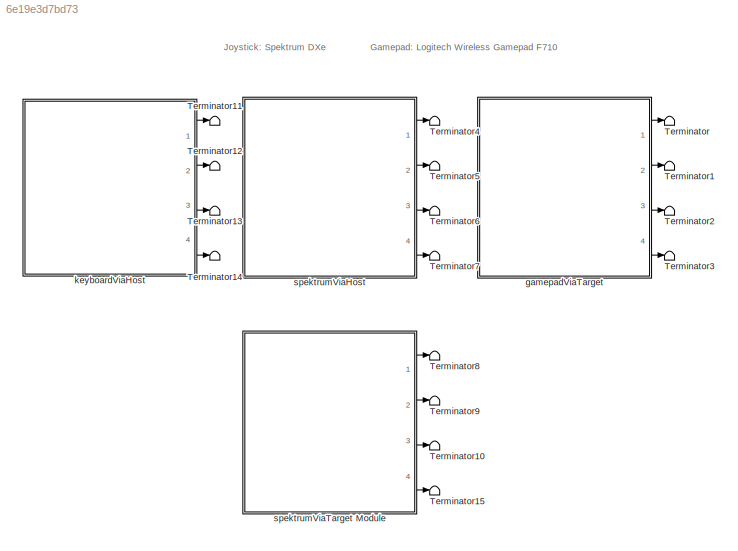
MODEL slx_6e19e3d7bd73
KIND model
CONFIG AbsTol = auto
CONFIG EnableMultiTasking = on
CONFIG FixedStep = 0.002
CONFIG MaxStep = auto
CONFIG MinStep = auto
CONFIG RelTol = 1e-3
CONFIG SampleTimeConstraint = Unconstrained
CONFIG Solver = ode2
CONFIG SolverName = ode2
CONFIG StartTime = 0.0
CONFIG StopTime = inf
BLOCK [Terminator] Terminator
BLOCK [Terminator] Terminator1
BLOCK [Terminator] Terminator10
BLOCK [Terminator] Terminator11
BLOCK [Terminator] Terminator12
BLOCK [Terminator] Terminator13
BLOCK [Terminator] Terminator14
BLOCK [Terminator] Terminator15
BLOCK [Terminator] Terminator2
BLOCK [Terminator] Terminator3
BLOCK [Terminator] Terminator4
BLOCK [Terminator] Terminator5
BLOCK [Terminator] Terminator6
BLOCK [Terminator] Terminator7
BLOCK [Terminator] Terminator8
BLOCK [Terminator] Terminator9
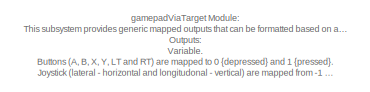
[diagram: gamepadViaTarget - part 1/2, top left region]
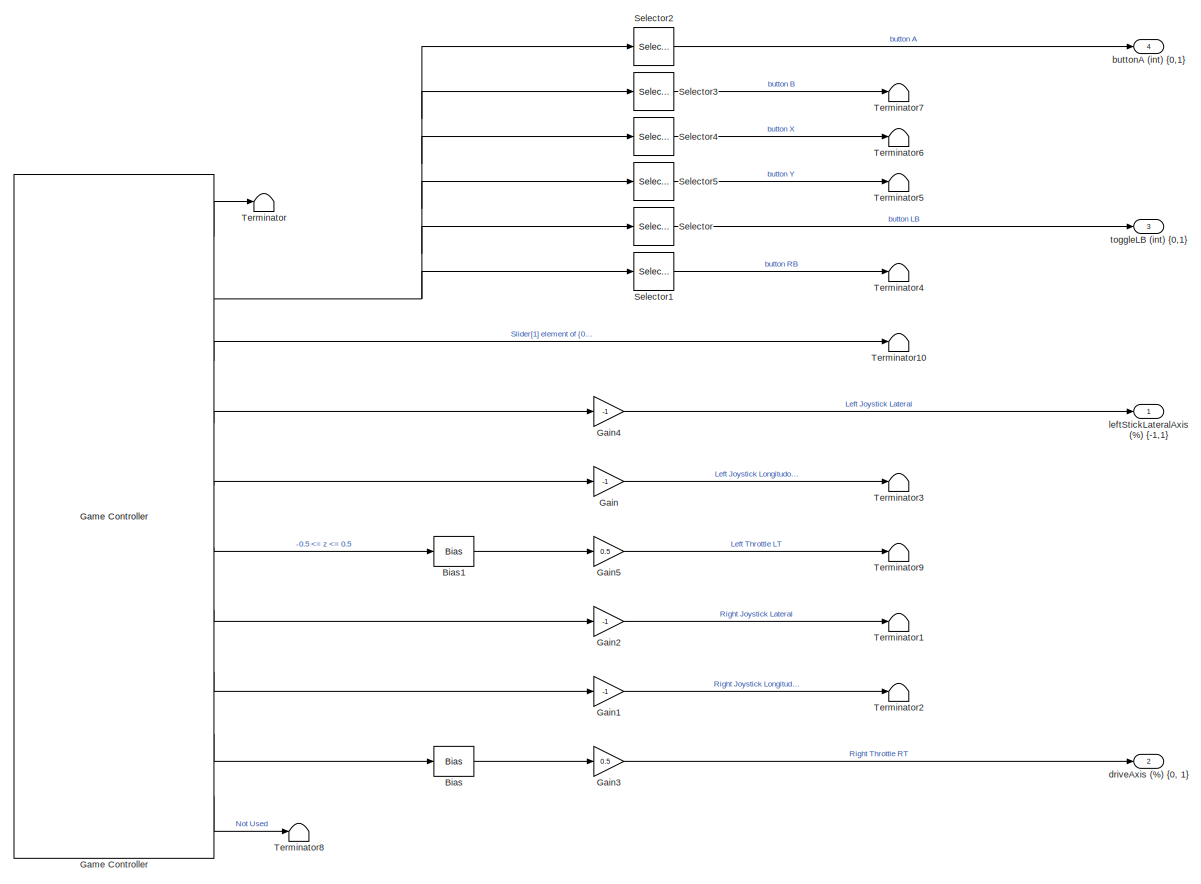
[diagram: gamepadViaTarget - part 2/2, most of the canvas]
BLOCK [SubSystem] gamepadViaTarget
  Ports = [0, 4]
  RequestExecContextInheritance = off
BLOCK [Bias] gamepadViaTarget/Bias
  Bias = 1
  SaturateOnIntegerOverflow = off
BLOCK [Bias] gamepadViaTarget/Bias1
  Bias = 1
  SaturateOnIntegerOverflow = off
BLOCK [Gain] gamepadViaTarget/Gain
  Gain = -1
  OutDataTypeStr = Inherit: Inherit via internal rule
  ParamDataTypeStr = Inherit: Inherit via internal rule
  SaturateOnIntegerOverflow = off
BLOCK [Gain] gamepadViaTarget/Gain1
  Gain = -1
  OutDataTypeStr = Inherit: Inherit via internal rule
  ParamDataTypeStr = Inherit: Inherit via internal rule
  SaturateOnIntegerOverflow = off
BLOCK [Gain] gamepadViaTarget/Gain2
  Gain = -1
  OutDataTypeStr = Inherit: Inherit via internal rule
  ParamDataTypeStr = Inherit: Inherit via internal rule
  SaturateOnIntegerOverflow = off
BLOCK [Gain] gamepadViaTarget/Gain3
  Gain = 0.5
  OutDataTypeStr = Inherit: Inherit via internal rule
  ParamDataTypeStr = Inherit: Inherit via internal rule
  SaturateOnIntegerOverflow = off
BLOCK [Gain] gamepadViaTarget/Gain4
  Gain = -1
  OutDataTypeStr = Inherit: Inherit via internal rule
  ParamDataTypeStr = Inherit: Inherit via internal rule
  SaturateOnIntegerOverflow = off
BLOCK [Gain] gamepadViaTarget/Gain5
  Gain = 0.5
  OutDataTypeStr = Inherit: Inherit via internal rule
  ParamDataTypeStr = Inherit: Inherit via internal rule
  SaturateOnIntegerOverflow = off
BLOCK [Reference] gamepadViaTarget/Game Controller  REF=quarc_library/Devices/Peripherals/Target/Game Controller
  Ports = [0, 10]
  SourceBlock = quarc_library/Devices/Peripherals/Target/Game Controller
  SourceProductName = QUARC Targets
  SourceType = Game Controller
BLOCK [Selector] gamepadViaTarget/Selector
  IndexOptions = Index vector (dialog)
  Indices = [5]
  InputPortWidth = 32
  OutputSizes = 1
  Ports = [1, 1]
BLOCK [Selector] gamepadViaTarget/Selector1
  IndexOptions = Index vector (dialog)
  Indices = [6]
  InputPortWidth = 32
  OutputSizes = 1
  Ports = [1, 1]
BLOCK [Selector] gamepadViaTarget/Selector2
  IndexOptions = Index vector (dialog)
  Indices = [1]
  InputPortWidth = 32
  OutputSizes = 1
  Ports = [1, 1]
BLOCK [Selector] gamepadViaTarget/Selector3
  IndexOptions = Index vector (dialog)
  Indices = [2]
  InputPortWidth = 32
  OutputSizes = 1
  Ports = [1, 1]
BLOCK [Selector] gamepadViaTarget/Selector4
  IndexOptions = Index vector (dialog)
  Indices = [3]
  InputPortWidth = 32
  OutputSizes = 1
  Ports = [1, 1]
BLOCK [Selector] gamepadViaTarget/Selector5
  IndexOptions = Index vector (dialog)
  Indices = [4]
  InputPortWidth = 32
  OutputSizes = 1
  Ports = [1, 1]
BLOCK [Terminator] gamepadViaTarget/Terminator
BLOCK [Terminator] gamepadViaTarget/Terminator1
BLOCK [Terminator] gamepadViaTarget/Terminator10
BLOCK [Terminator] gamepadViaTarget/Terminator2
BLOCK [Terminator] gamepadViaTarget/Terminator3
BLOCK [Terminator] gamepadViaTarget/Terminator4
BLOCK [Terminator] gamepadViaTarget/Terminator5
BLOCK [Terminator] gamepadViaTarget/Terminator6
BLOCK [Terminator] gamepadViaTarget/Terminator7
BLOCK [Terminator] gamepadViaTarget/Terminator8
BLOCK [Terminator] gamepadViaTarget/Terminator9
BLOCK [Outport] gamepadViaTarget/buttonA (int) {0,1}
  IconDisplay = Port number
  Port = 4
BLOCK [Outport] gamepadViaTarget/driveAxis (%) {0, 1}
  IconDisplay = Port number
  Port = 2
BLOCK [Outport] gamepadViaTarget/leftStickLateralAxis (%) {-1,1}
  IconDisplay = Port number
BLOCK [Outport] gamepadViaTarget/toggleLB (int) {0,1}
  IconDisplay = Port number
  Port = 3
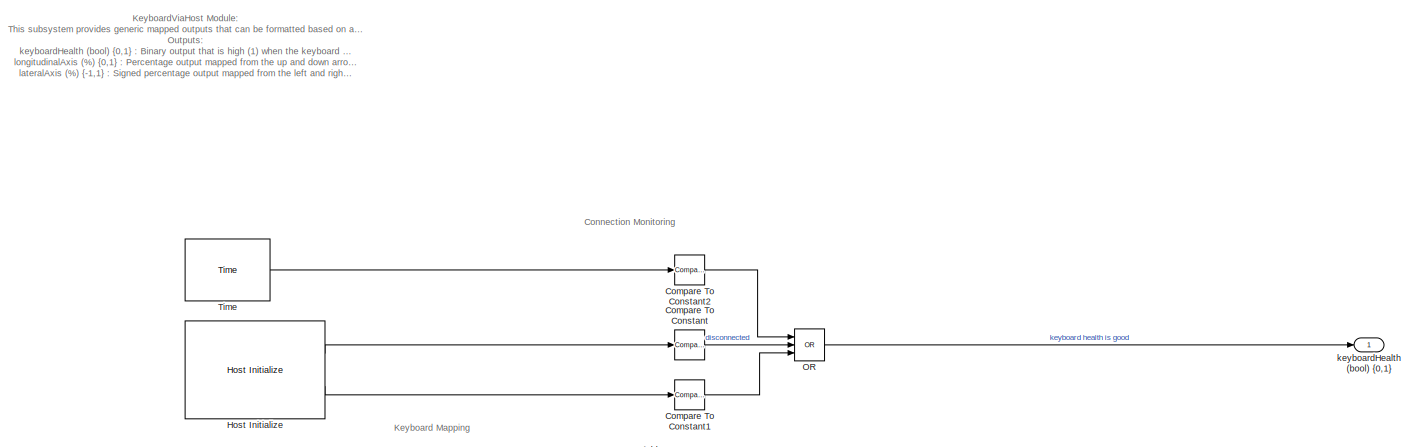
[diagram: keyboardViaHost - part 1/2, full width, top band]
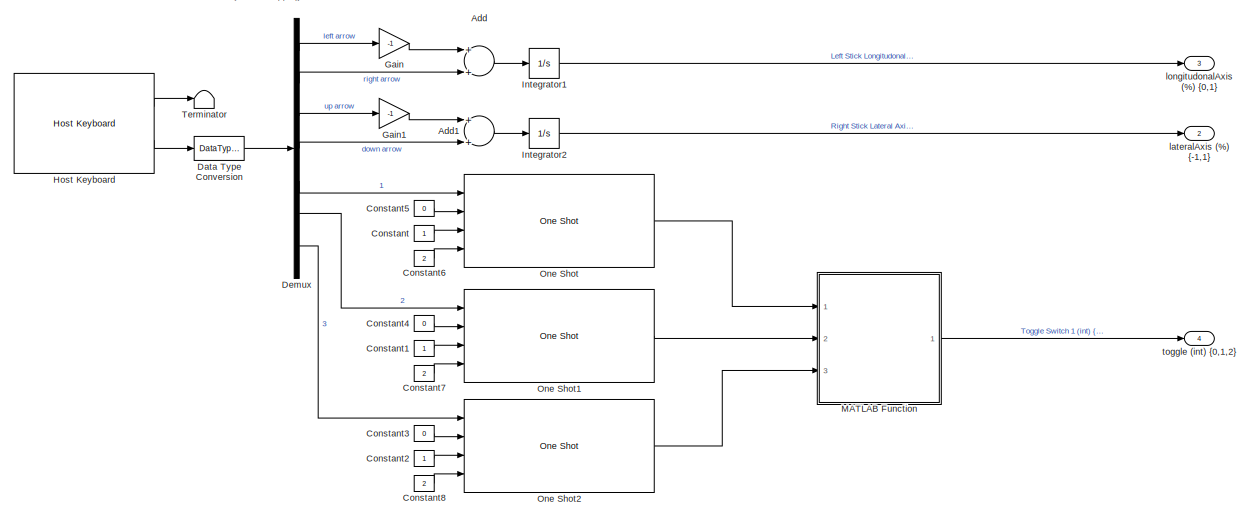
[diagram: keyboardViaHost - part 2/2, full width, bottom band]
BLOCK [SubSystem] keyboardViaHost
  Ports = [0, 4]
  RequestExecContextInheritance = off
BLOCK [Sum] keyboardViaHost/Add
  InputSameDT = off
  OutDataTypeStr = Inherit: Inherit via internal rule
  Ports = [2, 1]
  SaturateOnIntegerOverflow = off
BLOCK [Sum] keyboardViaHost/Add1
  InputSameDT = off
  OutDataTypeStr = Inherit: Inherit via internal rule
  Ports = [2, 1]
  SaturateOnIntegerOverflow = off
BLOCK [Reference] keyboardViaHost/Compare To Constant  REF=simulink/Logic and Bit
Operations/Compare
To Constant
  Ports = [1, 1]
  SourceBlock = simulink/Logic and Bit\nOperations/Compare\nTo Constant
  SourceProductBaseCode = SL
  SourceProductName = Simulink
  SourceType = Compare To Constant
BLOCK [Reference] keyboardViaHost/Compare To Constant1  REF=simulink/Logic and Bit
Operations/Compare
To Constant
  Ports = [1, 1]
  SourceBlock = simulink/Logic and Bit\nOperations/Compare\nTo Constant
  SourceProductBaseCode = SL
  SourceProductName = Simulink
  SourceType = Compare To Constant
BLOCK [Reference] keyboardViaHost/Compare To Constant2  REF=simulink/Logic and Bit
Operations/Compare
To Constant
  Ports = [1, 1]
  SourceBlock = simulink/Logic and Bit\nOperations/Compare\nTo Constant
  SourceProductBaseCode = SL
  SourceProductName = Simulink
  SourceType = Compare To Constant
BLOCK [Constant] keyboardViaHost/Constant
BLOCK [Constant] keyboardViaHost/Constant1
BLOCK [Constant] keyboardViaHost/Constant2
BLOCK [Constant] keyboardViaHost/Constant3
  Value = 0
BLOCK [Constant] keyboardViaHost/Constant4
  Value = 0
BLOCK [Constant] keyboardViaHost/Constant5
  Value = 0
BLOCK [Constant] keyboardViaHost/Constant6
  Value = 2
BLOCK [Constant] keyboardViaHost/Constant7
  Value = 2
BLOCK [Constant] keyboardViaHost/Constant8
  Value = 2
BLOCK [DataTypeConversion] keyboardViaHost/Data Type Conversion
  RndMeth = Floor
  SaturateOnIntegerOverflow = off
BLOCK [Demux] keyboardViaHost/Demux
  DisplayOption = bar
  Outputs = 7
  Ports = [1, 7]
BLOCK [Gain] keyboardViaHost/Gain
  Gain = -1
  OutDataTypeStr = Inherit: Inherit via internal rule
  ParamDataTypeStr = Inherit: Inherit via internal rule
  SaturateOnIntegerOverflow = off
BLOCK [Gain] keyboardViaHost/Gain1
  Gain = -1
  OutDataTypeStr = Inherit: Inherit via internal rule
  ParamDataTypeStr = Inherit: Inherit via internal rule
  SaturateOnIntegerOverflow = off
BLOCK [Reference] keyboardViaHost/Host Initialize  REF=quarc_library/Devices/Peripherals/Host/Host Initialize
  Ports = [0, 2]
  SourceBlock = quarc_library/Devices/Peripherals/Host/Host Initialize
  SourceProductName = QUARC Targets
  SourceType = Host Initialize
BLOCK [Reference] keyboardViaHost/Host Keyboard  REF=quarc_library/Devices/Peripherals/Host/Host Keyboard
  Ports = [0, 2]
  SourceBlock = quarc_library/Devices/Peripherals/Host/Host Keyboard
  SourceProductName = QUARC Targets
  SourceType = Host Keyboard
BLOCK [Integrator] keyboardViaHost/Integrator1
  LimitOutput = on
  LowerSaturationLimit = 0
  Ports = [1, 1]
  UpperSaturationLimit = 1
BLOCK [Integrator] keyboardViaHost/Integrator2
  LimitOutput = on
  LowerSaturationLimit = -1
  Ports = [1, 1]
  UpperSaturationLimit = 1
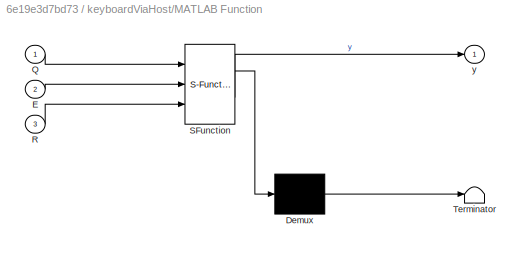
BLOCK [SubSystem] keyboardViaHost/MATLAB Function
  ErrorFcn = Stateflow.Translate.translate
  PermitHierarchicalResolution = ExplicitOnly
  Ports = [3, 1]
  RequestExecContextInheritance = off
  SFBlockType = MATLAB Function
  TreatAsAtomicUnit = on
BLOCK [Demux] keyboardViaHost/MATLAB Function/ Demux 
  Outputs = 1
  Ports = [1, 1]
BLOCK [S-Function] keyboardViaHost/MATLAB Function/ SFunction 
  EnableBusSupport = off
  FunctionName = sf_sfun
  PortCounts = [3 2]
  Ports = [3, 2]
  SFcnIsStateOwnerBlock = off
  SFunctionDeploymentMode = off
  Tag = Stateflow S-Function User_Interface_Unit 5
BLOCK [Terminator] keyboardViaHost/MATLAB Function/ Terminator 
BLOCK [Inport] keyboardViaHost/MATLAB Function/E
  IconDisplay = Port number
  Port = 2
BLOCK [Inport] keyboardViaHost/MATLAB Function/Q
  IconDisplay = Port number
BLOCK [Inport] keyboardViaHost/MATLAB Function/R
  IconDisplay = Port number
  Port = 3
BLOCK [Outport] keyboardViaHost/MATLAB Function/y
  IconDisplay = Port number
BLOCK [Logic] keyboardViaHost/OR
  AllPortsSameDT = off
  IconShape = distinctive
  Inputs = 3
  Operator = OR
  OutDataTypeStr = boolean
  Ports = [3, 1]
BLOCK [Reference] keyboardViaHost/One Shot  REF=quarc_library/Discontinuities/One Shot
  Ports = [4, 1]
  SourceBlock = quarc_library/Discontinuities/One Shot
  SourceProductName = QUARC Targets
  SourceType = One Shot
BLOCK [Reference] keyboardViaHost/One Shot1  REF=quarc_library/Discontinuities/One Shot
  Ports = [4, 1]
  SourceBlock = quarc_library/Discontinuities/One Shot
  SourceProductName = QUARC Targets
  SourceType = One Shot
BLOCK [Reference] keyboardViaHost/One Shot2  REF=quarc_library/Discontinuities/One Shot
  Ports = [4, 1]
  SourceBlock = quarc_library/Discontinuities/One Shot
  SourceProductName = QUARC Targets
  SourceType = One Shot
BLOCK [Terminator] keyboardViaHost/Terminator
BLOCK [Reference] keyboardViaHost/Time  REF=quarc_library/Sources/Time/Time
  Ports = [0, 1]
  SourceBlock = quarc_library/Sources/Time/Time
  SourceProductName = QUARC Targets
  SourceType = Time
BLOCK [Outport] keyboardViaHost/keyboardHealth (bool) {0,1}
  IconDisplay = Port number
BLOCK [Outport] keyboardViaHost/lateralAxis (%) {-1,1}
  IconDisplay = Port number
  Port = 2
BLOCK [Outport] keyboardViaHost/longitudonalAxis (%) {0,1}
  IconDisplay = Port number
  Port = 3
BLOCK [Outport] keyboardViaHost/toggle (int) {0,1,2}
  IconDisplay = Port number
  Port = 4
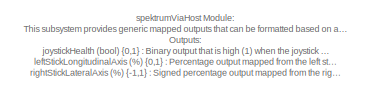
[diagram: spektrumViaHost - part 1/3, top left region]
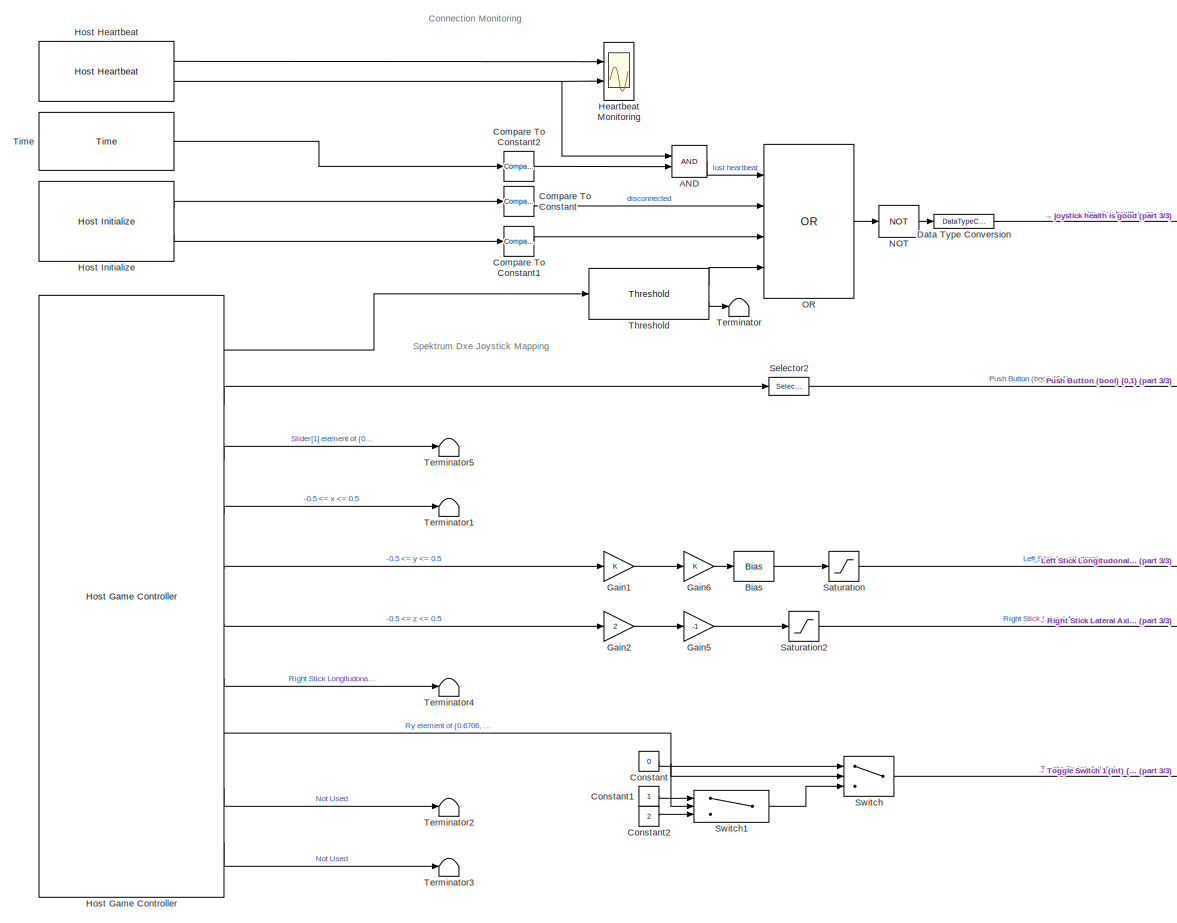
[diagram: spektrumViaHost - part 2/3, most of the canvas]
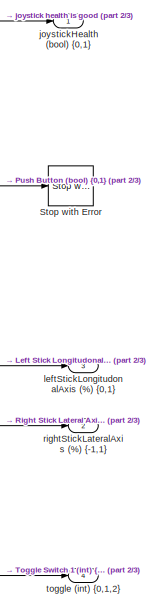
[diagram: spektrumViaHost - part 3/3, middle right region]
BLOCK [SubSystem] spektrumViaHost
  Ports = [0, 4]
  RequestExecContextInheritance = off
BLOCK [Logic] spektrumViaHost/AND
  AllPortsSameDT = off
  IconShape = distinctive
  OutDataTypeStr = boolean
  Ports = [2, 1]
BLOCK [Bias] spektrumViaHost/Bias
  Bias = 0.5
  SaturateOnIntegerOverflow = off
BLOCK [Reference] spektrumViaHost/Compare To Constant  REF=simulink/Logic and Bit
Operations/Compare
To Constant
  Ports = [1, 1]
  SourceBlock = simulink/Logic and Bit\nOperations/Compare\nTo Constant
  SourceProductBaseCode = SL
  SourceProductName = Simulink
  SourceType = Compare To Constant
BLOCK [Reference] spektrumViaHost/Compare To Constant1  REF=simulink/Logic and Bit
Operations/Compare
To Constant
  Ports = [1, 1]
  SourceBlock = simulink/Logic and Bit\nOperations/Compare\nTo Constant
  SourceProductBaseCode = SL
  SourceProductName = Simulink
  SourceType = Compare To Constant
BLOCK [Reference] spektrumViaHost/Compare To Constant2  REF=simulink/Logic and Bit
Operations/Compare
To Constant
  Ports = [1, 1]
  SourceBlock = simulink/Logic and Bit\nOperations/Compare\nTo Constant
  SourceProductBaseCode = SL
  SourceProductName = Simulink
  SourceType = Compare To Constant
BLOCK [Constant] spektrumViaHost/Constant
  Value = 0
BLOCK [Constant] spektrumViaHost/Constant1
BLOCK [Constant] spektrumViaHost/Constant2
  Value = 2
BLOCK [DataTypeConversion] spektrumViaHost/Data Type Conversion
  RndMeth = Floor
  SaturateOnIntegerOverflow = off
BLOCK [Gain] spektrumViaHost/Gain1
  OutDataTypeStr = Inherit: Inherit via internal rule
  ParamDataTypeStr = Inherit: Inherit via internal rule
  SaturateOnIntegerOverflow = off
BLOCK [Gain] spektrumViaHost/Gain2
  Gain = 2
  OutDataTypeStr = Inherit: Inherit via internal rule
  ParamDataTypeStr = Inherit: Inherit via internal rule
  SaturateOnIntegerOverflow = off
BLOCK [Gain] spektrumViaHost/Gain5
  Gain = -1
  OutDataTypeStr = Inherit: Inherit via internal rule
  ParamDataTypeStr = Inherit: Inherit via internal rule
  SaturateOnIntegerOverflow = off
BLOCK [Gain] spektrumViaHost/Gain6
  OutDataTypeStr = Inherit: Inherit via internal rule
  ParamDataTypeStr = Inherit: Inherit via internal rule
  SaturateOnIntegerOverflow = off
BLOCK [Scope] spektrumViaHost/Heartbeat Monitoring
  Floating = off
  NumInputPorts = 2
  Ports = [2]
  ScopeSpecificationString = Simulink.scopes.TimeScopeBlockCfg('CurrentConfiguration', extmgr.ConfigurationSet(extmgr.Configuration('Core','General UI',true),extmgr.Configuration('Core','Source UI',true),extmgr.Configuration('Sources','WiredSimulink',true),extmgr.Configuration('Visuals','Time Domain',true,'SerializedDisplays',{struct('MinYLimReal','-0.125','MaxYLimReal','1.125','YLabelReal','','MinYLimMag','0.00000','MaxYLimM...<+1417ch>
BLOCK [Reference] spektrumViaHost/Host Game Controller  REF=quarc_library/Devices/Peripherals/Host/Host Game Controller
  Ports = [0, 10]
  SourceBlock = quarc_library/Devices/Peripherals/Host/Host Game Controller
  SourceProductName = QUARC Targets
  SourceType = Host Game Controller
BLOCK [Reference] spektrumViaHost/Host Heartbeat  REF=quarc_library/Devices/Peripherals/Host/Host Heartbeat
  Ports = [0, 2]
  SourceBlock = quarc_library/Devices/Peripherals/Host/Host Heartbeat
  SourceProductName = QUARC Targets
  SourceType = Host Heartbeat
BLOCK [Reference] spektrumViaHost/Host Initialize  REF=quarc_library/Devices/Peripherals/Host/Host Initialize
  AttributesFormatString = "tcpip://linuxdev:18001"
  Ports = [0, 2]
  SourceBlock = quarc_library/Devices/Peripherals/Host/Host Initialize
  SourceProductName = QUARC Targets
  SourceType = Host Initialize
BLOCK [Logic] spektrumViaHost/NOT
  AllPortsSameDT = off
  IconShape = distinctive
  Operator = NOT
  OutDataTypeStr = boolean
  Ports = [1, 1]
BLOCK [Logic] spektrumViaHost/OR
  AllPortsSameDT = off
  IconShape = distinctive
  Inputs = 4
  Operator = OR
  OutDataTypeStr = boolean
  Ports = [4, 1]
BLOCK [Saturate] spektrumViaHost/Saturation
  InputPortMap = u0
  LowerLimit = 0
  Ports = [1, 1]
  UpperLimit = 1
BLOCK [Saturate] spektrumViaHost/Saturation2
  InputPortMap = u0
  LowerLimit = -1
  Ports = [1, 1]
  UpperLimit = 1
BLOCK [Selector] spektrumViaHost/Selector2
  IndexOptions = Index vector (dialog)
  Indices = [1]
  InputPortWidth = 32
  OutputSizes = 1
  Ports = [1, 1]
BLOCK [Reference] spektrumViaHost/Stop with Error  REF=quarc_library/Sinks/Error Handling/Stop with Error
  AttributesFormatString = "%<message>"
  Ports = [1]
  SourceBlock = quarc_library/Sinks/Error Handling/Stop with Error
  SourceProductName = QUARC Targets
  SourceType = Stop with Error
BLOCK [Switch] spektrumViaHost/Switch
  Criteria = u2 > Threshold
  InputSameDT = off
  SaturateOnIntegerOverflow = off
  Threshold = 0.5
BLOCK [Switch] spektrumViaHost/Switch1
  Criteria = u2 > Threshold
  InputSameDT = off
  SaturateOnIntegerOverflow = off
  Threshold = -0.25
BLOCK [Terminator] spektrumViaHost/Terminator
BLOCK [Terminator] spektrumViaHost/Terminator1
BLOCK [Terminator] spektrumViaHost/Terminator2
BLOCK [Terminator] spektrumViaHost/Terminator3
BLOCK [Terminator] spektrumViaHost/Terminator4
BLOCK [Terminator] spektrumViaHost/Terminator5
BLOCK [Reference] spektrumViaHost/Threshold  REF=quarc_library/Discontinuities/Threshold
  Ports = [1, 2]
  SourceBlock = quarc_library/Discontinuities/Threshold
  SourceProductName = QUARC Targets
  SourceType = Threshold
BLOCK [Reference] spektrumViaHost/Time  REF=quarc_library/Sources/Time/Time
  Ports = [0, 1]
  SourceBlock = quarc_library/Sources/Time/Time
  SourceProductName = QUARC Targets
  SourceType = Time
BLOCK [Outport] spektrumViaHost/joystickHealth (bool) {0,1}
  IconDisplay = Port number
BLOCK [Outport] spektrumViaHost/leftStickLongitudonalAxis (%) {0,1}
  IconDisplay = Port number
  Port = 3
BLOCK [Outport] spektrumViaHost/rightStickLateralAxis (%) {-1,1}
  IconDisplay = Port number
  Port = 2
BLOCK [Outport] spektrumViaHost/toggle (int) {0,1,2}
  IconDisplay = Port number
  Port = 4
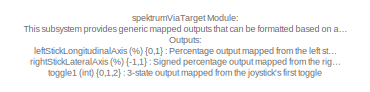
[diagram: spektrumViaTarget Module - part 1/2, top left region]
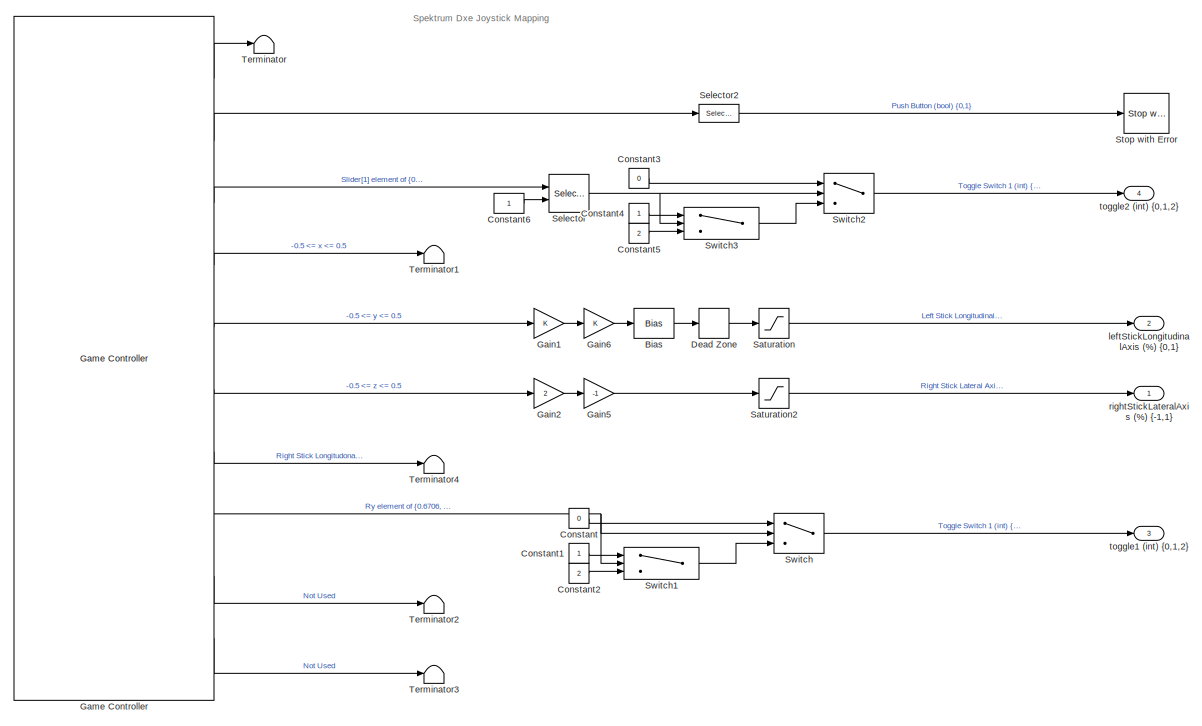
[diagram: spektrumViaTarget Module - part 2/2, full width, middle band]
BLOCK [SubSystem] spektrumViaTarget Module
  Ports = [0, 4]
  RequestExecContextInheritance = off
BLOCK [Bias] spektrumViaTarget Module/Bias
  Bias = 0.5
  SaturateOnIntegerOverflow = off
BLOCK [Constant] spektrumViaTarget Module/Constant
  Value = 0
BLOCK [Constant] spektrumViaTarget Module/Constant1
BLOCK [Constant] spektrumViaTarget Module/Constant2
  Value = 2
BLOCK [Constant] spektrumViaTarget Module/Constant3
  Value = 0
BLOCK [Constant] spektrumViaTarget Module/Constant4
BLOCK [Constant] spektrumViaTarget Module/Constant5
  Value = 2
BLOCK [Constant] spektrumViaTarget Module/Constant6
BLOCK [DeadZone] spektrumViaTarget Module/Dead Zone
  LowerValue = -0.1
  UpperValue = 0.1
BLOCK [Gain] spektrumViaTarget Module/Gain1
  OutDataTypeStr = Inherit: Inherit via internal rule
  ParamDataTypeStr = Inherit: Inherit via internal rule
  SaturateOnIntegerOverflow = off
BLOCK [Gain] spektrumViaTarget Module/Gain2
  Gain = 2
  OutDataTypeStr = Inherit: Inherit via internal rule
  ParamDataTypeStr = Inherit: Inherit via internal rule
  SaturateOnIntegerOverflow = off
BLOCK [Gain] spektrumViaTarget Module/Gain5
  Gain = -1
  OutDataTypeStr = Inherit: Inherit via internal rule
  ParamDataTypeStr = Inherit: Inherit via internal rule
  SaturateOnIntegerOverflow = off
BLOCK [Gain] spektrumViaTarget Module/Gain6
  OutDataTypeStr = Inherit: Inherit via internal rule
  ParamDataTypeStr = Inherit: Inherit via internal rule
  SaturateOnIntegerOverflow = off
BLOCK [Reference] spektrumViaTarget Module/Game Controller  REF=quarc_library/Devices/Peripherals/Target/Game Controller
  Ports = [0, 10]
  SourceBlock = quarc_library/Devices/Peripherals/Target/Game Controller
  SourceProductName = QUARC Targets
  SourceType = Game Controller
BLOCK [Saturate] spektrumViaTarget Module/Saturation
  InputPortMap = u0
  LowerLimit = 0
  Ports = [1, 1]
  UpperLimit = 1
BLOCK [Saturate] spektrumViaTarget Module/Saturation2
  InputPortMap = u0
  LowerLimit = -1
  Ports = [1, 1]
  UpperLimit = 1
BLOCK [Selector] spektrumViaTarget Module/Selector
  IndexOptions = Index vector (port)
  Indices = [1 3]
  InputPortWidth = 2
  OutputSizes = 1
  Ports = [2, 1]
BLOCK [Selector] spektrumViaTarget Module/Selector2
  IndexOptions = Index vector (dialog)
  Indices = [1]
  InputPortWidth = 32
  OutputSizes = 1
  Ports = [1, 1]
BLOCK [Reference] spektrumViaTarget Module/Stop with Error  REF=quarc_library/Sinks/Error Handling/Stop with Error
  AttributesFormatString = "%<message>"
  Ports = [1]
  SourceBlock = quarc_library/Sinks/Error Handling/Stop with Error
  SourceProductName = QUARC Targets
  SourceType = Stop with Error
BLOCK [Switch] spektrumViaTarget Module/Switch
  Criteria = u2 > Threshold
  InputSameDT = off
  SaturateOnIntegerOverflow = off
  Threshold = 0.5
BLOCK [Switch] spektrumViaTarget Module/Switch1
  Criteria = u2 > Threshold
  InputSameDT = off
  SaturateOnIntegerOverflow = off
  Threshold = -0.25
BLOCK [Switch] spektrumViaTarget Module/Switch2
  Criteria = u2 > Threshold
  InputSameDT = off
  SaturateOnIntegerOverflow = off
  Threshold = 0.7
BLOCK [Switch] spektrumViaTarget Module/Switch3
  Criteria = u2 > Threshold
  InputSameDT = off
  SaturateOnIntegerOverflow = off
  Threshold = 0.25
BLOCK [Terminator] spektrumViaTarget Module/Terminator
BLOCK [Terminator] spektrumViaTarget Module/Terminator1
BLOCK [Terminator] spektrumViaTarget Module/Terminator2
BLOCK [Terminator] spektrumViaTarget Module/Terminator3
BLOCK [Terminator] spektrumViaTarget Module/Terminator4
BLOCK [Outport] spektrumViaTarget Module/leftStickLongitudinalAxis (%) {0,1}
  IconDisplay = Port number
  Port = 2
BLOCK [Outport] spektrumViaTarget Module/rightStickLateralAxis (%) {-1,1}
  IconDisplay = Port number
BLOCK [Outport] spektrumViaTarget Module/toggle1 (int) {0,1,2}
  IconDisplay = Port number
  Port = 3
BLOCK [Outport] spektrumViaTarget Module/toggle2 (int) {0,1,2}
  IconDisplay = Port number
  Port = 4
ANNOTATION (root): Gamepad: Logitech Wireless Gamepad F710
ANNOTATION (root): Joystick: Spektrum DXe
ANNOTATION gamepadViaTarget: gamepadViaTarget Module: This subsystem provides generic mapped outputs that can be formatted based on application and usage. Use this module when the joystick USB dongle is connected directly to the target's USB port for applications where the user is following the target platform and will have the joystick remain in the vicinity of the target for better performance. Outputs: Variable. Buttons (A...<+692ch>
ANNOTATION keyboardViaHost: KeyboardViaHost Module: This subsystem provides generic mapped outputs that can be formatted based on application and usage. This example allows the user to use the keyboard from the host machine for applications where the user is not following the Qcar platform, and is driving remotely. Outputs: keyboardHealth (bool) {0,1} : Binary output that is high (1) when the keyboard connection is healthy a...<+468ch>
ANNOTATION keyboardViaHost: Connection Monitoring
ANNOTATION keyboardViaHost: Keyboard Mapping
ANNOTATION spektrumViaHost: spektrumViaHost Module: This subsystem provides generic mapped outputs that can be formatted based on application and usage. This example allows the user to connect the joystick USB dongle to the host machine for applications where the user is not following the Qcar platform, and is driving remotely. Also allows the user to terminate the model and corresponding code using hte Bind/Panic/Trainer pu...<+796ch>
ANNOTATION spektrumViaHost: Connection Monitoring
ANNOTATION spektrumViaHost: Spektrum Dxe Joystick Mapping
ANNOTATION spektrumViaTarget Module: spektrumViaTarget Module: This subsystem provides generic mapped outputs that can be formatted based on application and usage. Use this module when the joystick USB dongle is connected directly to the target's USB port for applications where the user is following the target platform and will have the joystick remain in the vicinity of the target for better performance. Also allows the user to term...<+1001ch>
ANNOTATION spektrumViaTarget Module: Spektrum Dxe Joystick Mapping
LINE gamepadViaTarget/Bias1:1 -> gamepadViaTarget/Gain5:1
LINE gamepadViaTarget/Bias:1 -> gamepadViaTarget/Gain3:1
LINE gamepadViaTarget/Gain1:1 -> gamepadViaTarget/Terminator2:1
LINE gamepadViaTarget/Gain2:1 -> gamepadViaTarget/Terminator1:1
LINE gamepadViaTarget/Gain3:1 -> gamepadViaTarget/driveAxis (%) {0, 1}:1
LINE gamepadViaTarget/Gain4:1 -> gamepadViaTarget/leftStickLateralAxis (%) {-1,1}:1
LINE gamepadViaTarget/Gain5:1 -> gamepadViaTarget/Terminator9:1
LINE gamepadViaTarget/Gain:1 -> gamepadViaTarget/Terminator3:1
LINE gamepadViaTarget/Game Controller:1 -> gamepadViaTarget/Terminator:1
LINE gamepadViaTarget/Game Controller:10 -> gamepadViaTarget/Terminator8:1
NET gamepadViaTarget/Game Controller:2 -> gamepadViaTarget/Selector1:1, gamepadViaTarget/Selector2:1, gamepadViaTarget/Selector3:1, gamepadViaTarget/Selector4:1, gamepadViaTarget/Selector5:1, gamepadViaTarget/Selector:1
LINE gamepadViaTarget/Game Controller:3 -> gamepadViaTarget/Terminator10:1
LINE gamepadViaTarget/Game Controller:4 -> gamepadViaTarget/Gain4:1
LINE gamepadViaTarget/Game Controller:5 -> gamepadViaTarget/Gain:1
LINE gamepadViaTarget/Game Controller:6 -> gamepadViaTarget/Bias1:1
LINE gamepadViaTarget/Game Controller:7 -> gamepadViaTarget/Gain2:1
LINE gamepadViaTarget/Game Controller:8 -> gamepadViaTarget/Gain1:1
LINE gamepadViaTarget/Game Controller:9 -> gamepadViaTarget/Bias:1
LINE gamepadViaTarget/Selector1:1 -> gamepadViaTarget/Terminator4:1
LINE gamepadViaTarget/Selector2:1 -> gamepadViaTarget/buttonA (int) {0,1}:1
LINE gamepadViaTarget/Selector3:1 -> gamepadViaTarget/Terminator7:1
LINE gamepadViaTarget/Selector4:1 -> gamepadViaTarget/Terminator6:1
LINE gamepadViaTarget/Selector5:1 -> gamepadViaTarget/Terminator5:1
LINE gamepadViaTarget/Selector:1 -> gamepadViaTarget/toggleLB (int) {0,1}:1
LINE gamepadViaTarget:1 -> Terminator:1
LINE gamepadViaTarget:2 -> Terminator1:1
LINE gamepadViaTarget:3 -> Terminator2:1
LINE gamepadViaTarget:4 -> Terminator3:1
LINE keyboardViaHost/Add1:1 -> keyboardViaHost/Integrator2:1
LINE keyboardViaHost/Add:1 -> keyboardViaHost/Integrator1:1
LINE keyboardViaHost/Compare To Constant1:1 -> keyboardViaHost/OR:3
LINE keyboardViaHost/Compare To Constant2:1 -> keyboardViaHost/OR:1
LINE keyboardViaHost/Compare To Constant:1 -> keyboardViaHost/OR:2
LINE keyboardViaHost/Constant1:1 -> keyboardViaHost/One Shot1:3
LINE keyboardViaHost/Constant2:1 -> keyboardViaHost/One Shot2:3
LINE keyboardViaHost/Constant3:1 -> keyboardViaHost/One Shot2:2
LINE keyboardViaHost/Constant4:1 -> keyboardViaHost/One Shot1:2
LINE keyboardViaHost/Constant5:1 -> keyboardViaHost/One Shot:2
LINE keyboardViaHost/Constant6:1 -> keyboardViaHost/One Shot:4
LINE keyboardViaHost/Constant7:1 -> keyboardViaHost/One Shot1:4
LINE keyboardViaHost/Constant8:1 -> keyboardViaHost/One Shot2:4
LINE keyboardViaHost/Constant:1 -> keyboardViaHost/One Shot:3
LINE keyboardViaHost/Data Type Conversion:1 -> keyboardViaHost/Demux:1
LINE keyboardViaHost/Demux:1 -> keyboardViaHost/Gain:1
LINE keyboardViaHost/Demux:2 -> keyboardViaHost/Add:2
LINE keyboardViaHost/Demux:3 -> keyboardViaHost/Gain1:1
LINE keyboardViaHost/Demux:4 -> keyboardViaHost/Add1:2
LINE keyboardViaHost/Demux:5 -> keyboardViaHost/One Shot:1
LINE keyboardViaHost/Demux:6 -> keyboardViaHost/One Shot1:1
LINE keyboardViaHost/Demux:7 -> keyboardViaHost/One Shot2:1
LINE keyboardViaHost/Gain1:1 -> keyboardViaHost/Add1:1
LINE keyboardViaHost/Gain:1 -> keyboardViaHost/Add:1
LINE keyboardViaHost/Host Initialize:1 -> keyboardViaHost/Compare To Constant:1
LINE keyboardViaHost/Host Initialize:2 -> keyboardViaHost/Compare To Constant1:1
LINE keyboardViaHost/Host Keyboard:1 -> keyboardViaHost/Terminator:1
LINE keyboardViaHost/Host Keyboard:2 -> keyboardViaHost/Data Type Conversion:1
LINE keyboardViaHost/Integrator1:1 -> keyboardViaHost/longitudonalAxis (%) {0,1}:1
LINE keyboardViaHost/Integrator2:1 -> keyboardViaHost/lateralAxis (%) {-1,1}:1
LINE keyboardViaHost/MATLAB Function:1 -> keyboardViaHost/toggle (int) {0,1,2}:1
LINE keyboardViaHost/OR:1 -> keyboardViaHost/keyboardHealth (bool) {0,1}:1
LINE keyboardViaHost/One Shot1:1 -> keyboardViaHost/MATLAB Function:2
LINE keyboardViaHost/One Shot2:1 -> keyboardViaHost/MATLAB Function:3
LINE keyboardViaHost/One Shot:1 -> keyboardViaHost/MATLAB Function:1
LINE keyboardViaHost/Time:1 -> keyboardViaHost/Compare To Constant2:1
LINE keyboardViaHost:1 -> Terminator11:1
LINE keyboardViaHost:2 -> Terminator12:1
LINE keyboardViaHost:3 -> Terminator13:1
LINE keyboardViaHost:4 -> Terminator14:1
LINE spektrumViaHost/AND:1 -> spektrumViaHost/OR:1
LINE spektrumViaHost/Bias:1 -> spektrumViaHost/Saturation:1
LINE spektrumViaHost/Compare To Constant1:1 -> spektrumViaHost/OR:3
LINE spektrumViaHost/Compare To Constant2:1 -> spektrumViaHost/AND:2
LINE spektrumViaHost/Compare To Constant:1 -> spektrumViaHost/OR:2
LINE spektrumViaHost/Constant1:1 -> spektrumViaHost/Switch1:1
LINE spektrumViaHost/Constant2:1 -> spektrumViaHost/Switch1:3
LINE spektrumViaHost/Constant:1 -> spektrumViaHost/Switch:1
LINE spektrumViaHost/Data Type Conversion:1 -> spektrumViaHost/joystickHealth (bool) {0,1}:1
LINE spektrumViaHost/Gain1:1 -> spektrumViaHost/Gain6:1
LINE spektrumViaHost/Gain2:1 -> spektrumViaHost/Gain5:1
LINE spektrumViaHost/Gain5:1 -> spektrumViaHost/Saturation2:1
LINE spektrumViaHost/Gain6:1 -> spektrumViaHost/Bias:1
LINE spektrumViaHost/Host Game Controller:1 -> spektrumViaHost/Threshold:1
LINE spektrumViaHost/Host Game Controller:10 -> spektrumViaHost/Terminator3:1
LINE spektrumViaHost/Host Game Controller:2 -> spektrumViaHost/Selector2:1
LINE spektrumViaHost/Host Game Controller:3 -> spektrumViaHost/Terminator5:1
LINE spektrumViaHost/Host Game Controller:4 -> spektrumViaHost/Terminator1:1
LINE spektrumViaHost/Host Game Controller:5 -> spektrumViaHost/Gain1:1
LINE spektrumViaHost/Host Game Controller:6 -> spektrumViaHost/Gain2:1
LINE spektrumViaHost/Host Game Controller:7 -> spektrumViaHost/Terminator4:1
NET spektrumViaHost/Host Game Controller:8 -> spektrumViaHost/Switch1:2, spektrumViaHost/Switch:2
LINE spektrumViaHost/Host Game Controller:9 -> spektrumViaHost/Terminator2:1
LINE spektrumViaHost/Host Heartbeat:1 -> spektrumViaHost/Heartbeat Monitoring:1
NET spektrumViaHost/Host Heartbeat:2 -> spektrumViaHost/AND:1, spektrumViaHost/Heartbeat Monitoring:2
LINE spektrumViaHost/Host Initialize:1 -> spektrumViaHost/Compare To Constant:1
LINE spektrumViaHost/Host Initialize:2 -> spektrumViaHost/Compare To Constant1:1
LINE spektrumViaHost/NOT:1 -> spektrumViaHost/Data Type Conversion:1
LINE spektrumViaHost/OR:1 -> spektrumViaHost/NOT:1
LINE spektrumViaHost/Saturation2:1 -> spektrumViaHost/rightStickLateralAxis (%) {-1,1}:1
LINE spektrumViaHost/Saturation:1 -> spektrumViaHost/leftStickLongitudonalAxis (%) {0,1}:1
LINE spektrumViaHost/Selector2:1 -> spektrumViaHost/Stop with Error:1
LINE spektrumViaHost/Switch1:1 -> spektrumViaHost/Switch:3
LINE spektrumViaHost/Switch:1 -> spektrumViaHost/toggle (int) {0,1,2}:1
LINE spektrumViaHost/Threshold:1 -> spektrumViaHost/OR:4
LINE spektrumViaHost/Threshold:2 -> spektrumViaHost/Terminator:1
LINE spektrumViaHost/Time:1 -> spektrumViaHost/Compare To Constant2:1
LINE spektrumViaHost:1 -> Terminator4:1
LINE spektrumViaHost:2 -> Terminator5:1
LINE spektrumViaHost:3 -> Terminator6:1
LINE spektrumViaHost:4 -> Terminator7:1
LINE spektrumViaTarget Module/Bias:1 -> spektrumViaTarget Module/Dead Zone:1
LINE spektrumViaTarget Module/Constant1:1 -> spektrumViaTarget Module/Switch1:1
LINE spektrumViaTarget Module/Constant2:1 -> spektrumViaTarget Module/Switch1:3
LINE spektrumViaTarget Module/Constant3:1 -> spektrumViaTarget Module/Switch2:1
LINE spektrumViaTarget Module/Constant4:1 -> spektrumViaTarget Module/Switch3:1
LINE spektrumViaTarget Module/Constant5:1 -> spektrumViaTarget Module/Switch3:3
LINE spektrumViaTarget Module/Constant6:1 -> spektrumViaTarget Module/Selector:2
LINE spektrumViaTarget Module/Constant:1 -> spektrumViaTarget Module/Switch:1
LINE spektrumViaTarget Module/Dead Zone:1 -> spektrumViaTarget Module/Saturation:1
LINE spektrumViaTarget Module/Gain1:1 -> spektrumViaTarget Module/Gain6:1
LINE spektrumViaTarget Module/Gain2:1 -> spektrumViaTarget Module/Gain5:1
LINE spektrumViaTarget Module/Gain5:1 -> spektrumViaTarget Module/Saturation2:1
LINE spektrumViaTarget Module/Gain6:1 -> spektrumViaTarget Module/Bias:1
LINE spektrumViaTarget Module/Game Controller:1 -> spektrumViaTarget Module/Terminator:1
LINE spektrumViaTarget Module/Game Controller:10 -> spektrumViaTarget Module/Terminator3:1
LINE spektrumViaTarget Module/Game Controller:2 -> spektrumViaTarget Module/Selector2:1
LINE spektrumViaTarget Module/Game Controller:3 -> spektrumViaTarget Module/Selector:1
LINE spektrumViaTarget Module/Game Controller:4 -> spektrumViaTarget Module/Terminator1:1
LINE spektrumViaTarget Module/Game Controller:5 -> spektrumViaTarget Module/Gain1:1
LINE spektrumViaTarget Module/Game Controller:6 -> spektrumViaTarget Module/Gain2:1
LINE spektrumViaTarget Module/Game Controller:7 -> spektrumViaTarget Module/Terminator4:1
NET spektrumViaTarget Module/Game Controller:8 -> spektrumViaTarget Module/Switch1:2, spektrumViaTarget Module/Switch:2
LINE spektrumViaTarget Module/Game Controller:9 -> spektrumViaTarget Module/Terminator2:1
LINE spektrumViaTarget Module/Saturation2:1 -> spektrumViaTarget Module/rightStickLateralAxis (%) {-1,1}:1
LINE spektrumViaTarget Module/Saturation:1 -> spektrumViaTarget Module/leftStickLongitudinalAxis (%) {0,1}:1
LINE spektrumViaTarget Module/Selector2:1 -> spektrumViaTarget Module/Stop with Error:1
NET spektrumViaTarget Module/Selector:1 -> spektrumViaTarget Module/Switch2:2, spektrumViaTarget Module/Switch3:2
LINE spektrumViaTarget Module/Switch1:1 -> spektrumViaTarget Module/Switch:3
LINE spektrumViaTarget Module/Switch2:1 -> spektrumViaTarget Module/toggle2 (int) {0,1,2}:1
LINE spektrumViaTarget Module/Switch3:1 -> spektrumViaTarget Module/Switch2:3
LINE spektrumViaTarget Module/Switch:1 -> spektrumViaTarget Module/toggle1 (int) {0,1,2}:1
LINE spektrumViaTarget Module:1 -> Terminator8:1
LINE spektrumViaTarget Module:2 -> Terminator9:1
LINE spektrumViaTarget Module:3 -> Terminator10:1
LINE spektrumViaTarget Module:4 -> Terminator15:1
note: NET lines group one-source signal fan-out (src -> all destinations, sorted); 1:1 wires keep LINE
CHART keyboardViaHost/MATLAB Function states=1 transitions=1
  STATE_LABEL 'eML_blk_kernel()'
  STATE_LABEL 'SCRIPT:\nfunction y = fcn(Q, E, R)\n\npersistent prev\nif isempty(prev)\n    prev = 1;\nend\ny = prev;\n\nif E > 0\n    y = 1;\nelseif Q > 0\n    y = 0;\nelseif R > 0\n    y = 2;\nend\n\nprev = y;'
